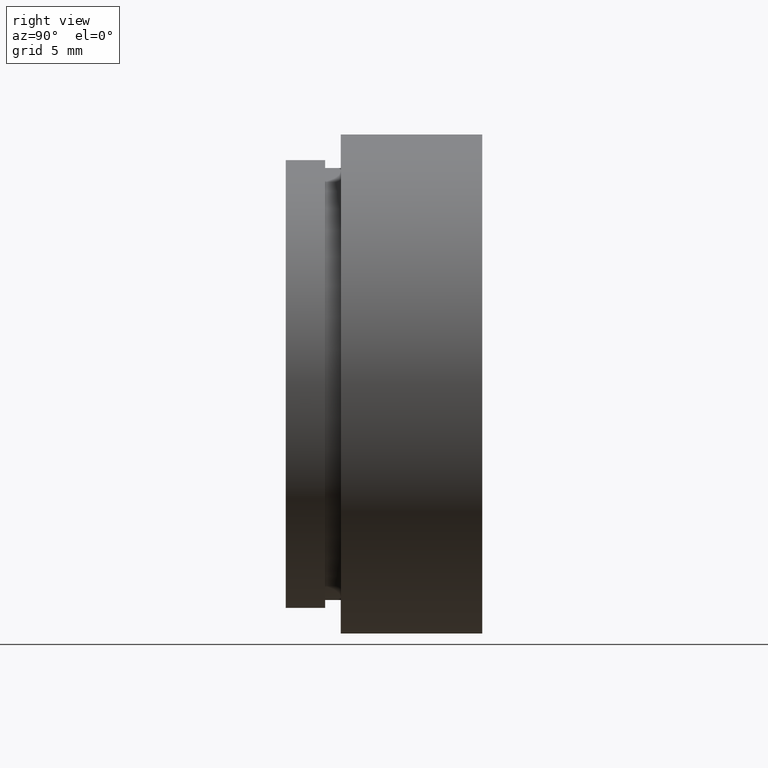
[diagram: clean part render]
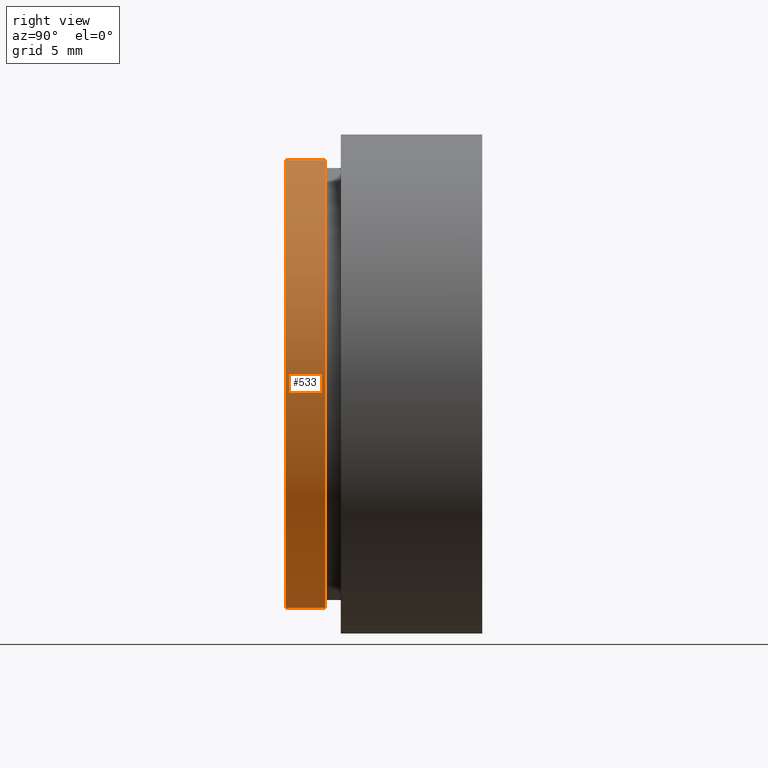
[diagram: same view with one face highlighted and labeled with its STEP entity id]
A machine part, right view. The second image highlights one B-rep face of the part: STEP entity #533.
In plain terms, the highlighted cylindrical surface (partial cylindrical patch) has radius 14.25 mm, axis along (-0, -1, -0).
Its self-contained STEP definition (entity closure, byte-faithful):
#3 = AXIS2_PLACEMENT_3D ( 'NONE', #497, #222, #673 ) ;
#15 = CARTESIAN_POINT ( 'NONE',  ( 0.0000000000000000000, 0.0000000000000000000, 0.0000000000000000000 ) ) ;
#20 = CYLINDRICAL_SURFACE ( 'NONE', #541, 14.25000000000000000 ) ;
#32 = ORIENTED_EDGE ( 'NONE', *, *, #232, .F. ) ;
#36 = CARTESIAN_POINT ( 'NONE',  ( 0.0000000000000000000, 0.0000000000000000000, -14.25000000000000000 ) ) ;
#44 = LINE ( 'NONE', #604, #276 ) ;
#91 = CARTESIAN_POINT ( 'NONE',  ( 1.745121688784978200E-015, 0.0000000000000000000, 14.25000000000000000 ) ) ;
#135 = AXIS2_PLACEMENT_3D ( 'NONE', #15, #404, #456 ) ;
#149 = CIRCLE ( 'NONE', #135, 14.25000000000000000 ) ;
#211 = VECTOR ( 'NONE', #335, 1000.000000000000000 ) ;
#215 = VERTEX_POINT ( 'NONE', #36 ) ;
#222 = DIRECTION ( 'NONE',  ( -0.0000000000000000000, -1.000000000000000000, -0.0000000000000000000 ) ) ;
#232 = EDGE_CURVE ( 'NONE', #617, #215, #44, .T. ) ;
#241 = VERTEX_POINT ( 'NONE', #91 ) ;
#276 = VECTOR ( 'NONE', #721, 1000.000000000000000 ) ;
#283 = EDGE_CURVE ( 'NONE', #610, #241, #402, .T. ) ;
#335 = DIRECTION ( 'NONE',  ( -0.0000000000000000000, -1.000000000000000000, -0.0000000000000000000 ) ) ;
#351 = CARTESIAN_POINT ( 'NONE',  ( 0.0000000000000000000, 2.499999999999999600, -14.25000000000000000 ) ) ;
#391 = CIRCLE ( 'NONE', #3, 14.25000000000000000 ) ;
#402 = LINE ( 'NONE', #501, #211 ) ;
#404 = DIRECTION ( 'NONE',  ( -0.0000000000000000000, -1.000000000000000000, -0.0000000000000000000 ) ) ;
#407 = EDGE_CURVE ( 'NONE', #617, #610, #391, .T. ) ;
#417 = CARTESIAN_POINT ( 'NONE',  ( 1.745121688784978200E-015, 2.499999999999999600, 14.25000000000000000 ) ) ;
#431 = FACE_OUTER_BOUND ( 'NONE', #645, .T. ) ;
#447 = ORIENTED_EDGE ( 'NONE', *, *, #283, .T. ) ;
#456 = DIRECTION ( 'NONE',  ( 0.0000000000000000000, 0.0000000000000000000, -1.000000000000000000 ) ) ;
#465 = ORIENTED_EDGE ( 'NONE', *, *, #506, .F. ) ;
#497 = CARTESIAN_POINT ( 'NONE',  ( 0.0000000000000000000, 2.499999999999999600, 0.0000000000000000000 ) ) ;
#501 = CARTESIAN_POINT ( 'NONE',  ( 1.745121688784978200E-015, 0.0000000000000000000, 14.25000000000000000 ) ) ;
#506 = EDGE_CURVE ( 'NONE', #215, #241, #149, .T. ) ;
#508 = DIRECTION ( 'NONE',  ( 0.0000000000000000000, 0.0000000000000000000, -1.000000000000000000 ) ) ;
#528 = ORIENTED_EDGE ( 'NONE', *, *, #407, .T. ) ;
#533 = ADVANCED_FACE ( 'NONE', ( #431 ), #20, .T. ) ;
#541 = AXIS2_PLACEMENT_3D ( 'NONE', #683, #630, #508 ) ;
#604 = CARTESIAN_POINT ( 'NONE',  ( 0.0000000000000000000, 0.0000000000000000000, -14.25000000000000000 ) ) ;
#610 = VERTEX_POINT ( 'NONE', #417 ) ;
#617 = VERTEX_POINT ( 'NONE', #351 ) ;
#630 = DIRECTION ( 'NONE',  ( -0.0000000000000000000, -1.000000000000000000, -0.0000000000000000000 ) ) ;
#645 = EDGE_LOOP ( 'NONE', ( #528, #447, #465, #32 ) ) ;
#673 = DIRECTION ( 'NONE',  ( 0.0000000000000000000, 0.0000000000000000000, -1.000000000000000000 ) ) ;
#683 = CARTESIAN_POINT ( 'NONE',  ( 0.0000000000000000000, 0.0000000000000000000, 0.0000000000000000000 ) ) ;
#721 = DIRECTION ( 'NONE',  ( -0.0000000000000000000, -1.000000000000000000, -0.0000000000000000000 ) ) ;